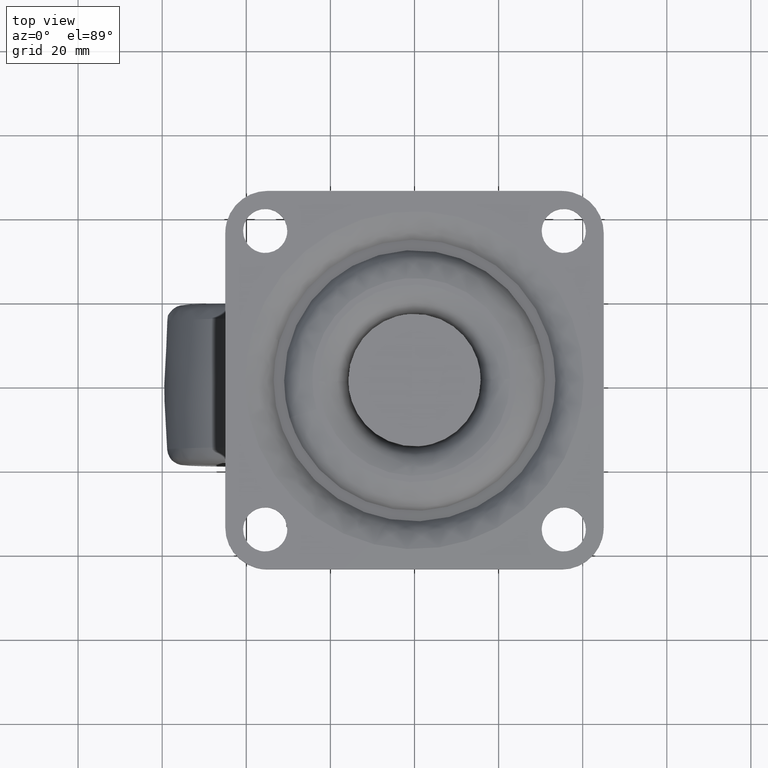
[diagram: clean part render]
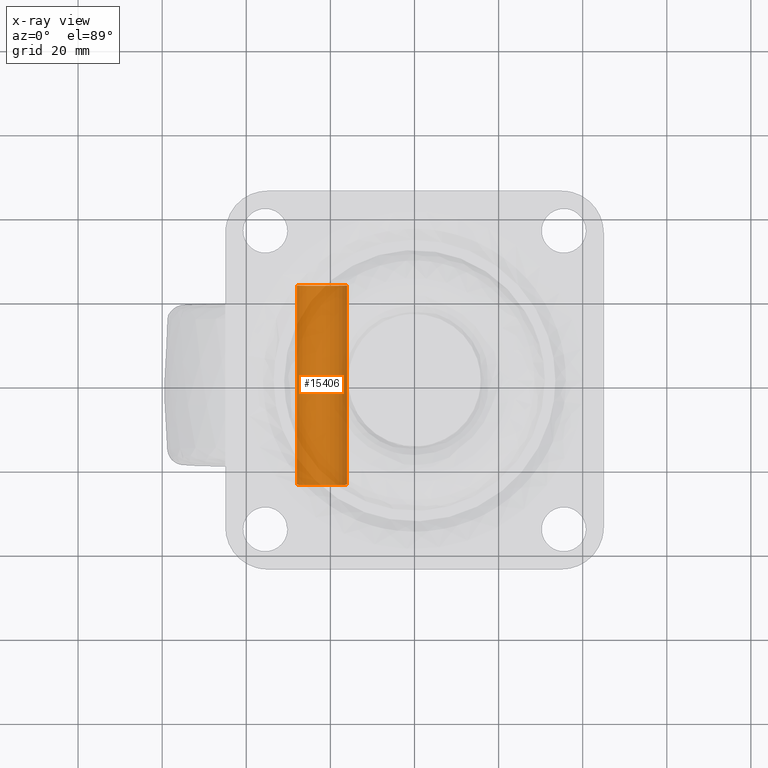
[diagram: x-ray — body ghosted, one internal face saturated and labeled with its STEP entity id]
A machine part, top view, then the same camera in x-ray: the body is ghosted and one INTERNAL B-rep face — a face not visible from any outside direction — is saturated and labeled: STEP entity #15406.
In plain terms, the highlighted face is a freeform B-spline surface patch.
Its self-contained STEP definition (entity closure, byte-faithful):
#15151=CARTESIAN_POINT('',(-22.0,23.699999999999999,-74.500000000000014));
#15152=VERTEX_POINT('',#15151);
#15153=CARTESIAN_POINT('',(-27.988808790529259,23.699999999999999,-68.866291237240830));
#15154=VERTEX_POINT('',#15153);
#15155=CARTESIAN_POINT('',(-22.0,23.699999999999999,-74.500000000000014));
#15156=CARTESIAN_POINT('',(-27.644236401404253,23.699999999999989,-74.500000000000014));
#15157=CARTESIAN_POINT('',(-27.988808790529259,23.699999999999999,-68.866291237240830));
#15165=(BOUNDED_CURVE()B_SPLINE_CURVE(2,(#15155,#15156,#15157),.UNSPECIFIED.,.F.,.U.)B_SPLINE_CURVE_WITH_KNOTS((3,3),(0.500000000000000,0.739332962241055),.UNSPECIFIED.)CURVE()GEOMETRIC_REPRESENTATION_ITEM()RATIONAL_B_SPLINE_CURVE((1.0,0.719603993284235,0.976072041671245))REPRESENTATION_ITEM(''));
#15166=EDGE_CURVE('',#15152,#15154,#15165,.T.);
#15185=CARTESIAN_POINT('',(-16.011191209470741,23.699999999999999,-68.133708762759170));
#15186=VERTEX_POINT('',#15185);
#15200=CARTESIAN_POINT('',(-16.011191209470738,23.699999999999992,-68.133708762759170));
#15201=CARTESIAN_POINT('',(-16.000000000000004,23.699999999999999,-68.316683420192589));
#15202=CARTESIAN_POINT('',(-16.0,23.699999999999999,-68.500000000000000));
#15203=CARTESIAN_POINT('',(-15.999999999999998,23.700000000000003,-74.500000000000000));
#15204=CARTESIAN_POINT('',(-22.0,23.699999999999999,-74.500000000000014));
#15212=(BOUNDED_CURVE()B_SPLINE_CURVE(2,(#15200,#15201,#15202,#15203,#15204),.UNSPECIFIED.,.F.,.U.)B_SPLINE_CURVE_WITH_KNOTS((3,2,3),(0.239332962241055,0.250000000000000,0.500000000000000),.UNSPECIFIED.)CURVE()GEOMETRIC_REPRESENTATION_ITEM()RATIONAL_B_SPLINE_CURVE((0.976072041671245,0.987502787902312,1.0,0.707106781186548,1.0))REPRESENTATION_ITEM(''));
#15213=EDGE_CURVE('',#15186,#15152,#15212,.T.);
#15340=CARTESIAN_POINT('',(-16.011191209468802,-24.885000000000009,-68.133708762790860));
#15341=CARTESIAN_POINT('',(-15.644899972259651,-24.885000000000005,-74.122517553322055));
#15342=CARTESIAN_POINT('',(-21.633708762790860,-24.885000000000009,-74.488808790531195));
#15343=CARTESIAN_POINT('',(-27.622517553322055,-24.885000000000005,-74.855100027740335));
#15344=CARTESIAN_POINT('',(-27.988808790531198,-24.885000000000009,-68.866291237209140));
#15345=CARTESIAN_POINT('',(-16.011191209468802,24.914625000000012,-68.133708762790860));
#15346=CARTESIAN_POINT('',(-15.644899972259651,24.914625000000004,-74.122517553322055));
#15347=CARTESIAN_POINT('',(-21.633708762790860,24.914625000000012,-74.488808790531195));
#15348=CARTESIAN_POINT('',(-27.622517553322055,24.914625000000004,-74.855100027740335));
#15349=CARTESIAN_POINT('',(-27.988808790531198,24.914625000000012,-68.866291237209140));
#15357=(BOUNDED_SURFACE()B_SPLINE_SURFACE(2,1,((#15340,#15345),(#15341,#15346),(#15342,#15347),(#15343,#15348),(#15344,#15349)),.UNSPECIFIED.,.F.,.F.,.U.)B_SPLINE_SURFACE_WITH_KNOTS((3,2,3),(2,2),(0.0,9.941125496954273,19.882250993908549),(0.0,49.799625000000027),.UNSPECIFIED.)GEOMETRIC_REPRESENTATION_ITEM()RATIONAL_B_SPLINE_SURFACE(((1.0,1.0),(0.707106781186548,0.707106781186548),(1.0,1.0),(0.707106781186548,0.707106781186548),(1.0,1.0)))REPRESENTATION_ITEM('')SURFACE());
#15358=ORIENTED_EDGE('',*,*,#15213,.F.);
#15359=CARTESIAN_POINT('',(-16.011191209470741,-23.699999999999999,-68.133708762759170));
#15360=VERTEX_POINT('',#15359);
#15361=CARTESIAN_POINT('',(-16.011191209470741,-23.699999999999999,-68.133708762759170));
#15362=CARTESIAN_POINT('',(-16.011191209470741,23.699999999999999,-68.133708762759170));
#15363=QUASI_UNIFORM_CURVE('',1,(#15361,#15362),.UNSPECIFIED.,.F.,.U.);
#15364=EDGE_CURVE('',#15360,#15186,#15363,.T.);
#15365=ORIENTED_EDGE('',*,*,#15364,.F.);
#15366=CARTESIAN_POINT('',(-22.0,-23.699999999999999,-74.500000000000014));
#15367=VERTEX_POINT('',#15366);
#15368=CARTESIAN_POINT('',(-16.011191209470738,-23.699999999999992,-68.133708762759170));
#15369=CARTESIAN_POINT('',(-16.000000000000004,-23.699999999999999,-68.316683420192589));
#15370=CARTESIAN_POINT('',(-16.0,-23.699999999999999,-68.500000000000000));
#15371=CARTESIAN_POINT('',(-15.999999999999998,-23.700000000000003,-74.500000000000000));
#15372=CARTESIAN_POINT('',(-22.0,-23.699999999999999,-74.500000000000014));
#15380=(BOUNDED_CURVE()B_SPLINE_CURVE(2,(#15368,#15369,#15370,#15371,#15372),.UNSPECIFIED.,.F.,.U.)B_SPLINE_CURVE_WITH_KNOTS((3,2,3),(0.239332962241055,0.250000000000000,0.500000000000000),.UNSPECIFIED.)CURVE()GEOMETRIC_REPRESENTATION_ITEM()RATIONAL_B_SPLINE_CURVE((0.976072041671245,0.987502787902312,1.0,0.707106781186548,1.0))REPRESENTATION_ITEM(''));
#15381=EDGE_CURVE('',#15360,#15367,#15380,.T.);
#15382=ORIENTED_EDGE('',*,*,#15381,.T.);
#15383=CARTESIAN_POINT('',(-27.988808790529259,-23.699999999999999,-68.866291237240830));
#15384=VERTEX_POINT('',#15383);
#15385=CARTESIAN_POINT('',(-22.0,-23.699999999999999,-74.500000000000014));
#15386=CARTESIAN_POINT('',(-27.644236401404253,-23.699999999999989,-74.500000000000014));
#15387=CARTESIAN_POINT('',(-27.988808790529259,-23.699999999999999,-68.866291237240830));
#15395=(BOUNDED_CURVE()B_SPLINE_CURVE(2,(#15385,#15386,#15387),.UNSPECIFIED.,.F.,.U.)B_SPLINE_CURVE_WITH_KNOTS((3,3),(0.500000000000000,0.739332962241055),.UNSPECIFIED.)CURVE()GEOMETRIC_REPRESENTATION_ITEM()RATIONAL_B_SPLINE_CURVE((1.0,0.719603993284235,0.976072041671245))REPRESENTATION_ITEM(''));
#15396=EDGE_CURVE('',#15367,#15384,#15395,.T.);
#15397=ORIENTED_EDGE('',*,*,#15396,.T.);
#15398=CARTESIAN_POINT('',(-27.988808790529259,-23.699999999999999,-68.866291237240830));
#15399=CARTESIAN_POINT('',(-27.988808790529259,23.699999999999999,-68.866291237240830));
#15400=QUASI_UNIFORM_CURVE('',1,(#15398,#15399),.UNSPECIFIED.,.F.,.U.);
#15401=EDGE_CURVE('',#15384,#15154,#15400,.T.);
#15402=ORIENTED_EDGE('',*,*,#15401,.T.);
#15403=ORIENTED_EDGE('',*,*,#15166,.F.);
#15404=EDGE_LOOP('',(#15358,#15365,#15382,#15397,#15402,#15403));
#15405=FACE_OUTER_BOUND('',#15404,.T.);
#15406=ADVANCED_FACE('',(#15405),#15357,.T.);